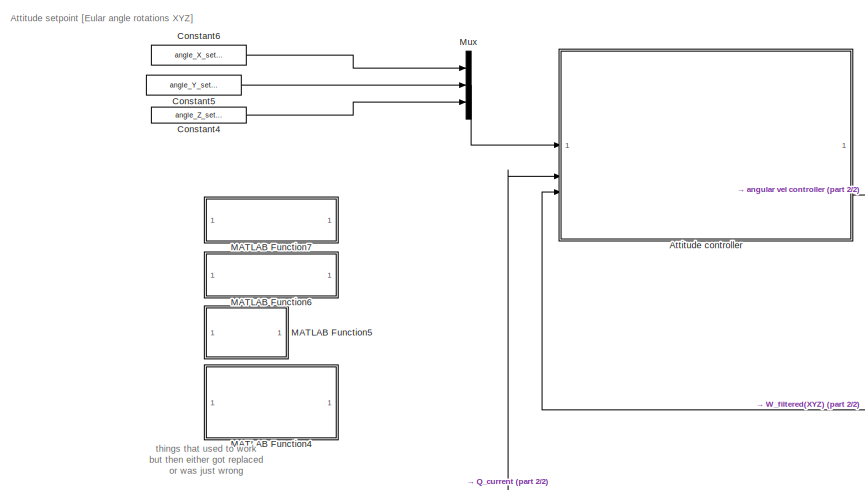
[diagram: root canvas - part 1/2, middle left region]
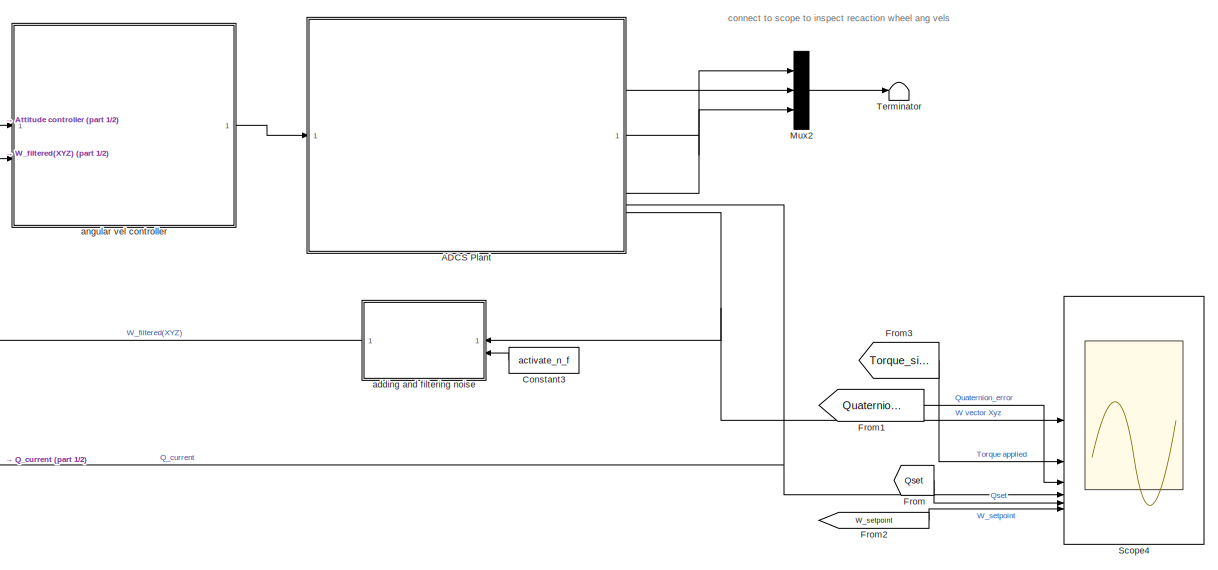
[diagram: root canvas - part 2/2, right side, full height]
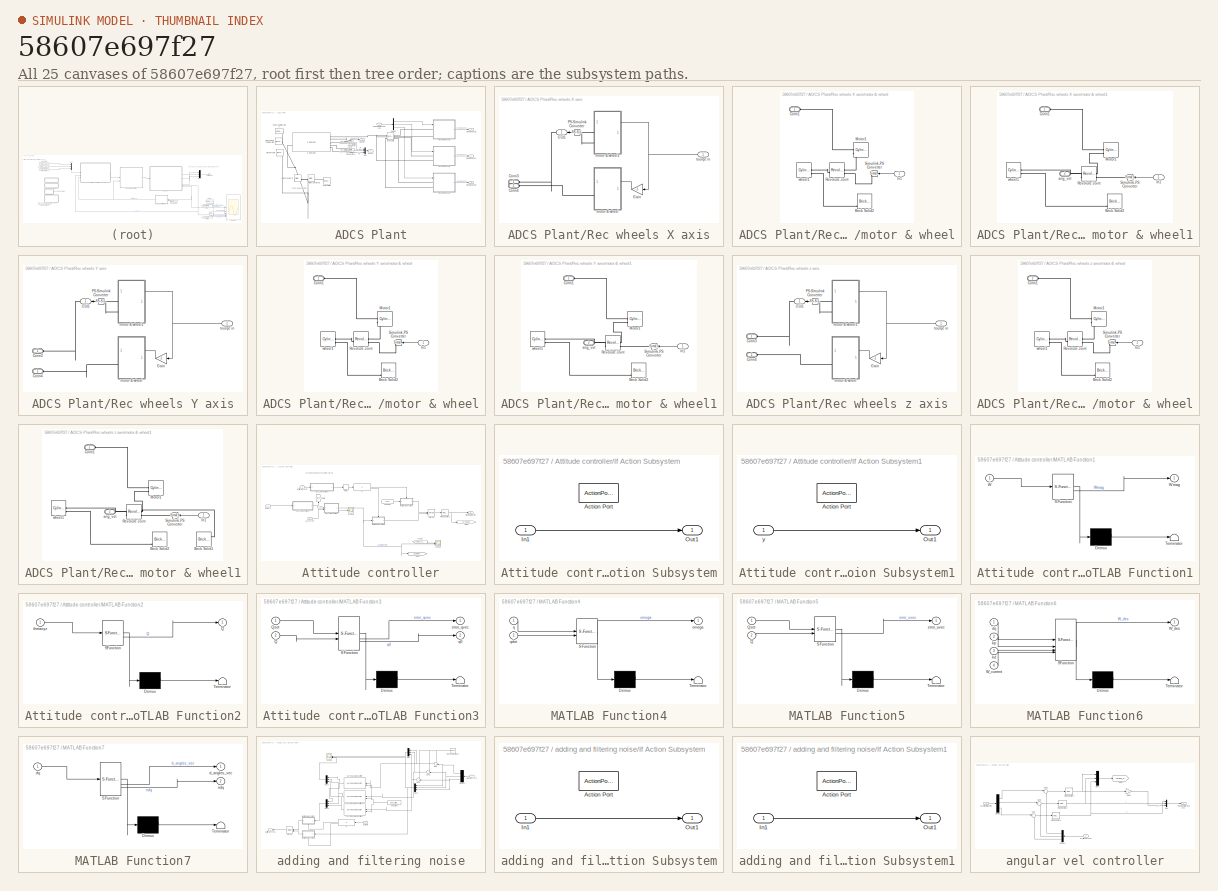
[diagram: thumbnail index - all 25 canvases of the model, root first then tree order]
MODEL slx_58607e697f27
KIND model
CONFIG AbsTol = auto
CONFIG EnableMultiTasking = off
CONFIG FixedStep = 0.01
CONFIG MaxStep = auto
CONFIG MinStep = auto
CONFIG RelTol = 1e-3
CONFIG SampleTimeConstraint = Unconstrained
CONFIG SolverName = FixedStepAuto
CONFIG StartTime = 0.0
CONFIG StopTime = 100
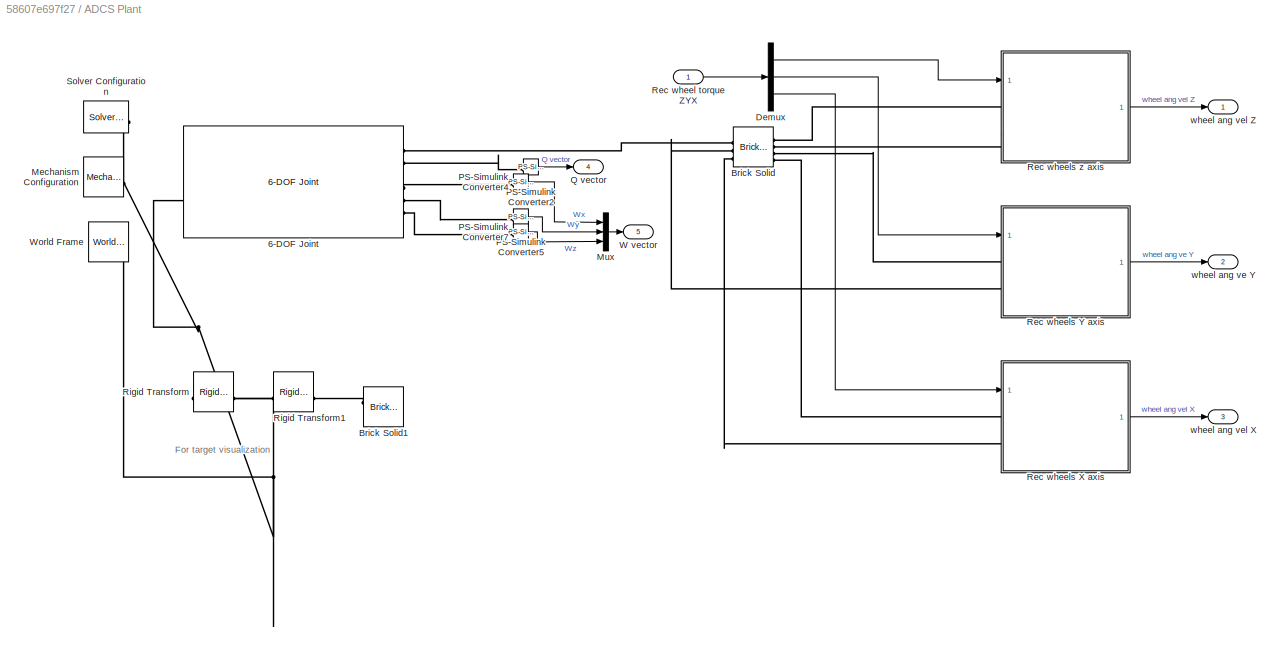
BLOCK [SubSystem] ADCS Plant
BLOCK [Reference] ADCS Plant/6-DOF Joint  REF=sm_lib/Joints/6-DOF Joint
  SourceBlock = sm_lib/Joints/6-DOF Joint
  SourceType = 6-DOF Joint
BLOCK [Reference] ADCS Plant/Brick Solid  REF=sm_lib/Body Elements/Brick Solid
  NameLocation = top
  SourceBlock = sm_lib/Body Elements/Brick Solid
  SourceType = Brick Solid
BLOCK [Reference] ADCS Plant/Brick Solid1  REF=sm_lib/Body Elements/Brick Solid
  NameLocation = top
  SourceBlock = sm_lib/Body Elements/Brick Solid
  SourceType = Brick Solid
BLOCK [Demux] ADCS Plant/Demux
  Outputs = 3
BLOCK [Reference] ADCS Plant/Mechanism Configuration  REF=sm_lib/Utilities/Mechanism
Configuration
  SourceBlock = sm_lib/Utilities/Mechanism\nConfiguration
  SourceType = Mechanism\nConfiguration
BLOCK [Mux] ADCS Plant/Mux
  DisplayOption = bar
  Inputs = 3
BLOCK [Reference] ADCS Plant/PS-Simulink Converter2  REF=nesl_utility/PS-Simulink
Converter
  SourceBlock = nesl_utility/PS-Simulink\nConverter
  SourceType = PS-Simulink\nConverter
BLOCK [Reference] ADCS Plant/PS-Simulink Converter4  REF=nesl_utility/PS-Simulink
Converter
  SourceBlock = nesl_utility/PS-Simulink\nConverter
  SourceType = PS-Simulink\nConverter
BLOCK [Reference] ADCS Plant/PS-Simulink Converter5  REF=nesl_utility/PS-Simulink
Converter
  SourceBlock = nesl_utility/PS-Simulink\nConverter
  SourceType = PS-Simulink\nConverter
BLOCK [Reference] ADCS Plant/PS-Simulink Converter7  REF=nesl_utility/PS-Simulink
Converter
  SourceBlock = nesl_utility/PS-Simulink\nConverter
  SourceType = PS-Simulink\nConverter
BLOCK [Outport] ADCS Plant/Q vector
  Port = 4
BLOCK [Inport] ADCS Plant/Rec wheel torque ZYX
BLOCK [SubSystem] ADCS Plant/Rec wheels X axis
BLOCK [PMIOPort] ADCS Plant/Rec wheels X axis/Conn3
  Side = Left
BLOCK [PMIOPort] ADCS Plant/Rec wheels X axis/Conn4
  Port = 2
  Side = Left
BLOCK [Gain] ADCS Plant/Rec wheels X axis/Gain
  Gain = -1
  NameLocation = top
BLOCK [Outport] ADCS Plant/Rec wheels X axis/Out1
  IconDisplay = Signal name
  NameLocation = top
BLOCK [Reference] ADCS Plant/Rec wheels X axis/PS-Simulink Converter  REF=nesl_utility/PS-Simulink
Converter
  NameLocation = top
  SourceBlock = nesl_utility/PS-Simulink\nConverter
  SourceType = PS-Simulink\nConverter
BLOCK [SubSystem] ADCS Plant/Rec wheels X axis/motor & wheel
  PortSchema = {"entries":[{"content":{"sides":[{"content":{"connectorIds":["LConn1"]},"type":"ConnectorPlacement.EquallySpacedRectSide","uuid":"e634adfb-2520-4564-986c-efae72637d56"},{"content":{"connectorIds":["In1"],"side":"RIGHT"},"type":"ConnectorPlacement.EquallySpacedRectSide","uuid":"d5a56bd9-b246-40bb-b48e-945087d1a6ac"},{"content":{"side":"TOP"},"type":"ConnectorPlacement.EquallySpacedRectSide","uuid":...<+224ch>  <repeated x3 — deduplicated; at blocks: motor & wheel>
BLOCK [Reference] ADCS Plant/Rec wheels X axis/motor & wheel/Brick Solid2  REF=sm_lib/Body Elements/Brick Solid
  SourceBlock = sm_lib/Body Elements/Brick Solid
  SourceType = Brick Solid
BLOCK [PMIOPort] ADCS Plant/Rec wheels X axis/motor & wheel/Conn1
  Side = Left
BLOCK [Inport] ADCS Plant/Rec wheels X axis/motor & wheel/In1
  NameLocation = top
BLOCK [Reference] ADCS Plant/Rec wheels X axis/motor & wheel/Motor1  REF=sm_lib/Body Elements/Cylindrical Solid
  SourceBlock = sm_lib/Body Elements/Cylindrical Solid
  SourceType = Cylindrical Solid
BLOCK [Reference] ADCS Plant/Rec wheels X axis/motor & wheel/Revolute Joint  REF=sm_lib/Joints/Revolute Joint
  NameLocation = top
  SourceBlock = sm_lib/Joints/Revolute Joint
  SourceType = Revolute Joint
BLOCK [Reference] ADCS Plant/Rec wheels X axis/motor & wheel/Simulink-PS Converter  REF=nesl_utility/Simulink-PS
Converter
  NameLocation = top
  SourceBlock = nesl_utility/Simulink-PS\nConverter
  SourceType = Simulink-PS\nConverter
BLOCK [Reference] ADCS Plant/Rec wheels X axis/motor & wheel/wheel1  REF=sm_lib/Body Elements/Cylindrical Solid
  NameLocation = top
  SourceBlock = sm_lib/Body Elements/Cylindrical Solid
  SourceType = Cylindrical Solid
BLOCK [SubSystem] ADCS Plant/Rec wheels X axis/motor & wheel1
  PortSchema = {"entries":[{"content":{"sides":[{"content":{"connectorIds":["LConn1","LConn2"]},"type":"ConnectorPlacement.EquallySpacedRectSide","uuid":"2ae3b8fa-607a-4ba3-b60e-34f468e508aa"},{"content":{"connectorIds":["In1"],"side":"RIGHT"},"type":"ConnectorPlacement.EquallySpacedRectSide","uuid":"3c74f0fd-49b5-45a1-b15a-904bafda6326"},{"content":{"side":"TOP"},"type":"ConnectorPlacement.EquallySpacedRectSide...<+233ch>  <repeated x3 — deduplicated; at blocks: motor & wheel1>
BLOCK [Reference] ADCS Plant/Rec wheels X axis/motor & wheel1/Brick Solid2  REF=sm_lib/Body Elements/Brick Solid
  SourceBlock = sm_lib/Body Elements/Brick Solid
  SourceType = Brick Solid
BLOCK [PMIOPort] ADCS Plant/Rec wheels X axis/motor & wheel1/Conn1
  Side = Left
BLOCK [Inport] ADCS Plant/Rec wheels X axis/motor & wheel1/In1
  NameLocation = top
BLOCK [Reference] ADCS Plant/Rec wheels X axis/motor & wheel1/Motor1  REF=sm_lib/Body Elements/Cylindrical Solid
  SourceBlock = sm_lib/Body Elements/Cylindrical Solid
  SourceType = Cylindrical Solid
BLOCK [Reference] ADCS Plant/Rec wheels X axis/motor & wheel1/Revolute Joint  REF=sm_lib/Joints/Revolute Joint
  NameLocation = top
  SourceBlock = sm_lib/Joints/Revolute Joint
  SourceType = Revolute Joint
BLOCK [Reference] ADCS Plant/Rec wheels X axis/motor & wheel1/Simulink-PS Converter  REF=nesl_utility/Simulink-PS
Converter
  NameLocation = top
  SourceBlock = nesl_utility/Simulink-PS\nConverter
  SourceType = Simulink-PS\nConverter
BLOCK [PMIOPort] ADCS Plant/Rec wheels X axis/motor & wheel1/ang_vel
  Port = 2
  Side = Left
BLOCK [Reference] ADCS Plant/Rec wheels X axis/motor & wheel1/wheel1  REF=sm_lib/Body Elements/Cylindrical Solid
  NameLocation = top
  SourceBlock = sm_lib/Body Elements/Cylindrical Solid
  SourceType = Cylindrical Solid
BLOCK [Inport] ADCS Plant/Rec wheels X axis/tourqe in
BLOCK [SubSystem] ADCS Plant/Rec wheels Y axis
BLOCK [PMIOPort] ADCS Plant/Rec wheels Y axis/Conn3
  Side = Left
BLOCK [PMIOPort] ADCS Plant/Rec wheels Y axis/Conn4
  Port = 2
  Side = Left
BLOCK [Gain] ADCS Plant/Rec wheels Y axis/Gain
  Gain = -1
  NameLocation = top
BLOCK [Outport] ADCS Plant/Rec wheels Y axis/Out1
  IconDisplay = Signal name
  NameLocation = top
BLOCK [Reference] ADCS Plant/Rec wheels Y axis/PS-Simulink Converter  REF=nesl_utility/PS-Simulink
Converter
  NameLocation = top
  SourceBlock = nesl_utility/PS-Simulink\nConverter
  SourceType = PS-Simulink\nConverter
BLOCK [SubSystem] ADCS Plant/Rec wheels Y axis/motor & wheel
BLOCK [Reference] ADCS Plant/Rec wheels Y axis/motor & wheel/Brick Solid2  REF=sm_lib/Body Elements/Brick Solid
  SourceBlock = sm_lib/Body Elements/Brick Solid
  SourceType = Brick Solid
BLOCK [PMIOPort] ADCS Plant/Rec wheels Y axis/motor & wheel/Conn1
  Side = Left
BLOCK [Inport] ADCS Plant/Rec wheels Y axis/motor & wheel/In1
  NameLocation = top
BLOCK [Reference] ADCS Plant/Rec wheels Y axis/motor & wheel/Motor1  REF=sm_lib/Body Elements/Cylindrical Solid
  SourceBlock = sm_lib/Body Elements/Cylindrical Solid
  SourceType = Cylindrical Solid
BLOCK [Reference] ADCS Plant/Rec wheels Y axis/motor & wheel/Revolute Joint  REF=sm_lib/Joints/Revolute Joint
  NameLocation = top
  SourceBlock = sm_lib/Joints/Revolute Joint
  SourceType = Revolute Joint
BLOCK [Reference] ADCS Plant/Rec wheels Y axis/motor & wheel/Simulink-PS Converter  REF=nesl_utility/Simulink-PS
Converter
  NameLocation = top
  SourceBlock = nesl_utility/Simulink-PS\nConverter
  SourceType = Simulink-PS\nConverter
BLOCK [Reference] ADCS Plant/Rec wheels Y axis/motor & wheel/wheel1  REF=sm_lib/Body Elements/Cylindrical Solid
  NameLocation = top
  SourceBlock = sm_lib/Body Elements/Cylindrical Solid
  SourceType = Cylindrical Solid
BLOCK [SubSystem] ADCS Plant/Rec wheels Y axis/motor & wheel1
BLOCK [Reference] ADCS Plant/Rec wheels Y axis/motor & wheel1/Brick Solid2  REF=sm_lib/Body Elements/Brick Solid
  SourceBlock = sm_lib/Body Elements/Brick Solid
  SourceType = Brick Solid
BLOCK [PMIOPort] ADCS Plant/Rec wheels Y axis/motor & wheel1/Conn1
  Side = Left
BLOCK [Inport] ADCS Plant/Rec wheels Y axis/motor & wheel1/In1
  NameLocation = top
BLOCK [Reference] ADCS Plant/Rec wheels Y axis/motor & wheel1/Motor1  REF=sm_lib/Body Elements/Cylindrical Solid
  SourceBlock = sm_lib/Body Elements/Cylindrical Solid
  SourceType = Cylindrical Solid
BLOCK [Reference] ADCS Plant/Rec wheels Y axis/motor & wheel1/Revolute Joint  REF=sm_lib/Joints/Revolute Joint
  NameLocation = top
  SourceBlock = sm_lib/Joints/Revolute Joint
  SourceType = Revolute Joint
BLOCK [Reference] ADCS Plant/Rec wheels Y axis/motor & wheel1/Simulink-PS Converter  REF=nesl_utility/Simulink-PS
Converter
  NameLocation = top
  SourceBlock = nesl_utility/Simulink-PS\nConverter
  SourceType = Simulink-PS\nConverter
BLOCK [PMIOPort] ADCS Plant/Rec wheels Y axis/motor & wheel1/ang_vel
  Port = 2
  Side = Left
BLOCK [Reference] ADCS Plant/Rec wheels Y axis/motor & wheel1/wheel1  REF=sm_lib/Body Elements/Cylindrical Solid
  NameLocation = top
  SourceBlock = sm_lib/Body Elements/Cylindrical Solid
  SourceType = Cylindrical Solid
BLOCK [Inport] ADCS Plant/Rec wheels Y axis/tourqe in
BLOCK [SubSystem] ADCS Plant/Rec wheels z axis
BLOCK [PMIOPort] ADCS Plant/Rec wheels z axis/Conn3
  Side = Left
BLOCK [PMIOPort] ADCS Plant/Rec wheels z axis/Conn4
  Port = 2
  Side = Left
BLOCK [Gain] ADCS Plant/Rec wheels z axis/Gain
  Gain = -1
  NameLocation = top
BLOCK [Outport] ADCS Plant/Rec wheels z axis/Out1
  IconDisplay = Signal name
  NameLocation = top
BLOCK [Reference] ADCS Plant/Rec wheels z axis/PS-Simulink Converter  REF=nesl_utility/PS-Simulink
Converter
  NameLocation = top
  SourceBlock = nesl_utility/PS-Simulink\nConverter
  SourceType = PS-Simulink\nConverter
BLOCK [SubSystem] ADCS Plant/Rec wheels z axis/motor & wheel
BLOCK [Reference] ADCS Plant/Rec wheels z axis/motor & wheel/Brick Solid2  REF=sm_lib/Body Elements/Brick Solid
  SourceBlock = sm_lib/Body Elements/Brick Solid
  SourceType = Brick Solid
BLOCK [PMIOPort] ADCS Plant/Rec wheels z axis/motor & wheel/Conn1
  Side = Left
BLOCK [Inport] ADCS Plant/Rec wheels z axis/motor & wheel/In1
  NameLocation = top
BLOCK [Reference] ADCS Plant/Rec wheels z axis/motor & wheel/Motor1  REF=sm_lib/Body Elements/Cylindrical Solid
  SourceBlock = sm_lib/Body Elements/Cylindrical Solid
  SourceType = Cylindrical Solid
BLOCK [Reference] ADCS Plant/Rec wheels z axis/motor & wheel/Revolute Joint  REF=sm_lib/Joints/Revolute Joint
  NameLocation = top
  SourceBlock = sm_lib/Joints/Revolute Joint
  SourceType = Revolute Joint
BLOCK [Reference] ADCS Plant/Rec wheels z axis/motor & wheel/Simulink-PS Converter  REF=nesl_utility/Simulink-PS
Converter
  NameLocation = top
  SourceBlock = nesl_utility/Simulink-PS\nConverter
  SourceType = Simulink-PS\nConverter
BLOCK [Reference] ADCS Plant/Rec wheels z axis/motor & wheel/wheel1  REF=sm_lib/Body Elements/Cylindrical Solid
  NameLocation = top
  SourceBlock = sm_lib/Body Elements/Cylindrical Solid
  SourceType = Cylindrical Solid
BLOCK [SubSystem] ADCS Plant/Rec wheels z axis/motor & wheel1
BLOCK [Reference] ADCS Plant/Rec wheels z axis/motor & wheel1/Brick Solid1  REF=sm_lib/Body Elements/Brick Solid
  NameLocation = top
  SourceBlock = sm_lib/Body Elements/Brick Solid
  SourceType = Brick Solid
BLOCK [Reference] ADCS Plant/Rec wheels z axis/motor & wheel1/Brick Solid2  REF=sm_lib/Body Elements/Brick Solid
  SourceBlock = sm_lib/Body Elements/Brick Solid
  SourceType = Brick Solid
BLOCK [PMIOPort] ADCS Plant/Rec wheels z axis/motor & wheel1/Conn1
  Side = Left
BLOCK [Inport] ADCS Plant/Rec wheels z axis/motor & wheel1/In1
  NameLocation = top
BLOCK [Reference] ADCS Plant/Rec wheels z axis/motor & wheel1/Motor1  REF=sm_lib/Body Elements/Cylindrical Solid
  SourceBlock = sm_lib/Body Elements/Cylindrical Solid
  SourceType = Cylindrical Solid
BLOCK [Reference] ADCS Plant/Rec wheels z axis/motor & wheel1/Revolute Joint  REF=sm_lib/Joints/Revolute Joint
  NameLocation = top
  SourceBlock = sm_lib/Joints/Revolute Joint
  SourceType = Revolute Joint
BLOCK [Reference] ADCS Plant/Rec wheels z axis/motor & wheel1/Simulink-PS Converter  REF=nesl_utility/Simulink-PS
Converter
  NameLocation = top
  SourceBlock = nesl_utility/Simulink-PS\nConverter
  SourceType = Simulink-PS\nConverter
BLOCK [PMIOPort] ADCS Plant/Rec wheels z axis/motor & wheel1/ang_vel
  Port = 2
  Side = Left
BLOCK [Reference] ADCS Plant/Rec wheels z axis/motor & wheel1/wheel1  REF=sm_lib/Body Elements/Cylindrical Solid
  NameLocation = top
  SourceBlock = sm_lib/Body Elements/Cylindrical Solid
  SourceType = Cylindrical Solid
BLOCK [Inport] ADCS Plant/Rec wheels z axis/tourqe in
BLOCK [Reference] ADCS Plant/Rigid Transform  REF=sm_lib/Frames and
Transforms/Rigid
Transform
  SourceBlock = sm_lib/Frames and\nTransforms/Rigid\nTransform
  SourceType = Rigid\nTransform
BLOCK [Reference] ADCS Plant/Rigid Transform1  REF=sm_lib/Frames and
Transforms/Rigid
Transform
  SourceBlock = sm_lib/Frames and\nTransforms/Rigid\nTransform
  SourceType = Rigid\nTransform
BLOCK [Reference] ADCS Plant/Solver Configuration  REF=nesl_utility/Solver
Configuration
  SourceBlock = nesl_utility/Solver\nConfiguration
  SourceType = Solver\nConfiguration
BLOCK [Outport] ADCS Plant/W vector
  Port = 5
BLOCK [Reference] ADCS Plant/World Frame  REF=sm_lib/Frames and
Transforms/World Frame
  SourceBlock = sm_lib/Frames and\nTransforms/World Frame
  SourceType = World Frame
BLOCK [Outport] ADCS Plant/wheel ang ve Y
  Port = 2
BLOCK [Outport] ADCS Plant/wheel ang vel X
  Port = 3
BLOCK [Outport] ADCS Plant/wheel ang vel Z
BLOCK [SubSystem] Attitude controller
BLOCK [Constant] Attitude controller/Constant
  Value = [0 0 0]
BLOCK [From] Attitude controller/From2
  GotoTag = Torque_signal
  TagVisibility = global
BLOCK [Goto] Attitude controller/Goto
  GotoTag = Qset
  NameLocation = right
  TagVisibility = global
BLOCK [Goto] Attitude controller/Goto1
  GotoTag = Quaternion_error
  TagVisibility = global
BLOCK [Goto] Attitude controller/Goto2
  GotoTag = W_setpoint
  TagVisibility = global
BLOCK [If] Attitude controller/If
  IfExpression = u1 > 5
BLOCK [SubSystem] Attitude controller/If Action Subsystem
  TreatAsAtomicUnit = on
BLOCK [ActionPort] Attitude controller/If Action Subsystem/Action Port
  ActionPortLabel = if(u1 > 5)
BLOCK [Inport] Attitude controller/If Action Subsystem/In1
BLOCK [Outport] Attitude controller/If Action Subsystem/Out1
BLOCK [SubSystem] Attitude controller/If Action Subsystem1
  TreatAsAtomicUnit = on
BLOCK [ActionPort] Attitude controller/If Action Subsystem1/Action Port
  ActionPortLabel = else
BLOCK [Outport] Attitude controller/If Action Subsystem1/Out1
BLOCK [Inport] Attitude controller/If Action Subsystem1/y
BLOCK [SubSystem] Attitude controller/MATLAB Function1
  ErrorFcn = Stateflow.Translate.translate
  PermitHierarchicalResolution = ExplicitOnly
  SFBlockType = MATLAB Function
  TreatAsAtomicUnit = on
BLOCK [Demux] Attitude controller/MATLAB Function1/ Demux 
  Outputs = 1
BLOCK [S-Function] Attitude controller/MATLAB Function1/ SFunction 
  EnableBusSupport = on
  FunctionName = sf_sfun
  PortCounts = [1 2]
  SFcnIsStateOwnerBlock = off
  SFunctionDeploymentMode = off
  Tag = Stateflow S-Function 1
BLOCK [Terminator] Attitude controller/MATLAB Function1/ Terminator 
BLOCK [Inport] Attitude controller/MATLAB Function1/W
BLOCK [Outport] Attitude controller/MATLAB Function1/Wmag
BLOCK [SubSystem] Attitude controller/MATLAB Function2
  ErrorFcn = Stateflow.Translate.translate
  PermitHierarchicalResolution = ExplicitOnly
  SFBlockType = MATLAB Function
  TreatAsAtomicUnit = on
BLOCK [Demux] Attitude controller/MATLAB Function2/ Demux 
  Outputs = 1
BLOCK [S-Function] Attitude controller/MATLAB Function2/ SFunction 
  EnableBusSupport = on
  FunctionName = sf_sfun
  PortCounts = [1 2]
  SFcnIsStateOwnerBlock = off
  SFunctionDeploymentMode = off
  Tag = Stateflow S-Function 3
BLOCK [Terminator] Attitude controller/MATLAB Function2/ Terminator 
BLOCK [Outport] Attitude controller/MATLAB Function2/Q
BLOCK [Inport] Attitude controller/MATLAB Function2/thetaxyz
BLOCK [SubSystem] Attitude controller/MATLAB Function3
  ErrorFcn = Stateflow.Translate.translate
  PermitHierarchicalResolution = ExplicitOnly
  SFBlockType = MATLAB Function
  TreatAsAtomicUnit = on
BLOCK [Demux] Attitude controller/MATLAB Function3/ Demux 
  Outputs = 1
BLOCK [S-Function] Attitude controller/MATLAB Function3/ SFunction 
  EnableBusSupport = on
  FunctionName = sf_sfun
  PortCounts = [2 3]
  SFcnIsStateOwnerBlock = off
  SFunctionDeploymentMode = off
  Tag = Stateflow S-Function 4
BLOCK [Terminator] Attitude controller/MATLAB Function3/ Terminator 
BLOCK [Inport] Attitude controller/MATLAB Function3/Q
  Port = 2
BLOCK [Inport] Attitude controller/MATLAB Function3/Qset
BLOCK [Outport] Attitude controller/MATLAB Function3/error_qvec
BLOCK [Outport] Attitude controller/MATLAB Function3/q0
  Port = 2
BLOCK [Merge] Attitude controller/Merge
BLOCK [Reference] Attitude controller/PID Controller3  REF=slpidlib/PID Controller
  LibrarySourceBlock = simulink/Continuous/PID Controller
  SourceBlock = slpidlib/PID Controller
  SourceType = PID 1dof
BLOCK [Inport] Attitude controller/Q_current
  NameLocation = top
  Port = 2
BLOCK [Relay] Attitude controller/Relay
  OffSwitchValue = 0.001
  OnOutputValue = 10
  OnSwitchValue = 10
BLOCK [Scope] Attitude controller/Scope2
  Floating = off
  NumInputPorts = 2
  ScopeSpecificationString = Simulink.scopes.TimeScopeBlockCfg('CurrentConfiguration', extmgr.ConfigurationSet(extmgr.Configuration('Core','General UI',true),extmgr.Configuration('Core','Source UI',true),extmgr.Configuration('Sources','WiredSimulink',true,'DataLoggingVariableName','ScopeData1'),extmgr.Configuration('Visuals','Time Domain',true,'SerializedDisplays',{struct('MinYLimReal','-0.00063','MaxYLimReal','0.00063','YLab...<+2439ch>
BLOCK [Scope] Attitude controller/Scope3
  Floating = off
  NumInputPorts = 1
  ScopeSpecificationString = Simulink.scopes.TimeScopeBlockCfg('CurrentConfiguration', extmgr.ConfigurationSet(extmgr.Configuration('Core','General UI',true),extmgr.Configuration('Core','Source UI',true),extmgr.Configuration('Sources','WiredSimulink',true,'DataLoggingVariableName','ScopeData2'),extmgr.Configuration('Visuals','Time Domain',true,'SerializedDisplays',{struct('MinYLimReal','-1.17496','MaxYLimReal','1.17562','YLab...<+2278ch>
BLOCK [Outport] Attitude controller/W setpoint vector
BLOCK [Inport] Attitude controller/W_filtered(XYZ)
  Port = 3
BLOCK [Inport] Attitude controller/thetaxyz
BLOCK [Constant] Constant3
  NameLocation = top
  Value = activate_n_f
BLOCK [Constant] Constant4
  Value = angle_Z_setpoint
BLOCK [Constant] Constant5
  Value = angle_Y_setpoint
BLOCK [Constant] Constant6
  Value = angle_X_setpoint
BLOCK [From] From
  GotoTag = Qset
  TagVisibility = global
BLOCK [From] From1
  GotoTag = Quaternion_error
  TagVisibility = global
BLOCK [From] From2
  GotoTag = W_setpoint
  TagVisibility = global
BLOCK [From] From3
  GotoTag = Torque_signal
  TagVisibility = global
BLOCK [SubSystem] MATLAB Function4
  Commented = on
  ErrorFcn = Stateflow.Translate.translate
  NameLocation = top
  PermitHierarchicalResolution = ExplicitOnly
  SFBlockType = MATLAB Function
  TreatAsAtomicUnit = on
BLOCK [Demux] MATLAB Function4/ Demux 
  Outputs = 1
BLOCK [S-Function] MATLAB Function4/ SFunction 
  EnableBusSupport = on
  FunctionName = sf_sfun
  PortCounts = [2 2]
  SFcnIsStateOwnerBlock = off
  SFunctionDeploymentMode = off
  Tag = Stateflow S-Function 5
BLOCK [Terminator] MATLAB Function4/ Terminator 
BLOCK [Outport] MATLAB Function4/omega
BLOCK [Inport] MATLAB Function4/q
BLOCK [Inport] MATLAB Function4/qdot
  Port = 2
BLOCK [SubSystem] MATLAB Function5
  Commented = on
  ErrorFcn = Stateflow.Translate.translate
  NameLocation = top
  PermitHierarchicalResolution = ExplicitOnly
  SFBlockType = MATLAB Function
  TreatAsAtomicUnit = on
BLOCK [Demux] MATLAB Function5/ Demux 
  Outputs = 1
BLOCK [S-Function] MATLAB Function5/ SFunction 
  EnableBusSupport = on
  FunctionName = sf_sfun
  PortCounts = [2 2]
  SFcnIsStateOwnerBlock = off
  SFunctionDeploymentMode = off
  Tag = Stateflow S-Function 6
BLOCK [Terminator] MATLAB Function5/ Terminator 
BLOCK [Inport] MATLAB Function5/Q
  Port = 2
BLOCK [Inport] MATLAB Function5/Qset
BLOCK [Outport] MATLAB Function5/error_uvec
BLOCK [SubSystem] MATLAB Function6
  Commented = on
  ErrorFcn = Stateflow.Translate.translate
  NameLocation = top
  PermitHierarchicalResolution = ExplicitOnly
  SFBlockType = MATLAB Function
  TreatAsAtomicUnit = on
BLOCK [Demux] MATLAB Function6/ Demux 
  Outputs = 1
BLOCK [S-Function] MATLAB Function6/ SFunction 
  EnableBusSupport = on
  FunctionName = sf_sfun
  PortCounts = [4 2]
  SFcnIsStateOwnerBlock = off
  SFunctionDeploymentMode = off
  Tag = Stateflow S-Function 7
BLOCK [Terminator] MATLAB Function6/ Terminator 
BLOCK [Inport] MATLAB Function6/W_current
  Port = 4
BLOCK [Outport] MATLAB Function6/W_des
BLOCK [Inport] MATLAB Function6/dq
BLOCK [Inport] MATLAB Function6/kd
  Port = 3
BLOCK [Inport] MATLAB Function6/kp
  Port = 2
BLOCK [SubSystem] MATLAB Function7
  Commented = on
  ErrorFcn = Stateflow.Translate.translate
  NameLocation = top
  PermitHierarchicalResolution = ExplicitOnly
  SFBlockType = MATLAB Function
  TreatAsAtomicUnit = on
BLOCK [Demux] MATLAB Function7/ Demux 
  Outputs = 1
BLOCK [S-Function] MATLAB Function7/ SFunction 
  EnableBusSupport = on
  FunctionName = sf_sfun
  PortCounts = [1 3]
  SFcnIsStateOwnerBlock = off
  SFunctionDeploymentMode = off
  Tag = Stateflow S-Function 8
BLOCK [Terminator] MATLAB Function7/ Terminator 
BLOCK [Outport] MATLAB Function7/d_angles_vec
BLOCK [Inport] MATLAB Function7/dq
BLOCK [Outport] MATLAB Function7/ndq
  Port = 2
BLOCK [Mux] Mux
  DisplayOption = bar
  Inputs = 3
BLOCK [Mux] Mux2
  DisplayOption = bar
  Inputs = 3
BLOCK [Scope] Scope4
  Floating = off
  NumInputPorts = 6
  ScopeSpecificationString = Simulink.scopes.TimeScopeBlockCfg('CurrentConfiguration', extmgr.ConfigurationSet(extmgr.Configuration('Core','General UI',true),extmgr.Configuration('Core','Source UI',true),extmgr.Configuration('Sources','WiredSimulink',true,'DataLoggingVariableName','ScopeData4'),extmgr.Configuration('Visuals','Time Domain',true,'SerializedDisplays',{struct('MinYLimReal','-3.40019','MaxYLimReal','23.64886','YLa...<+5986ch>
BLOCK [Terminator] Terminator
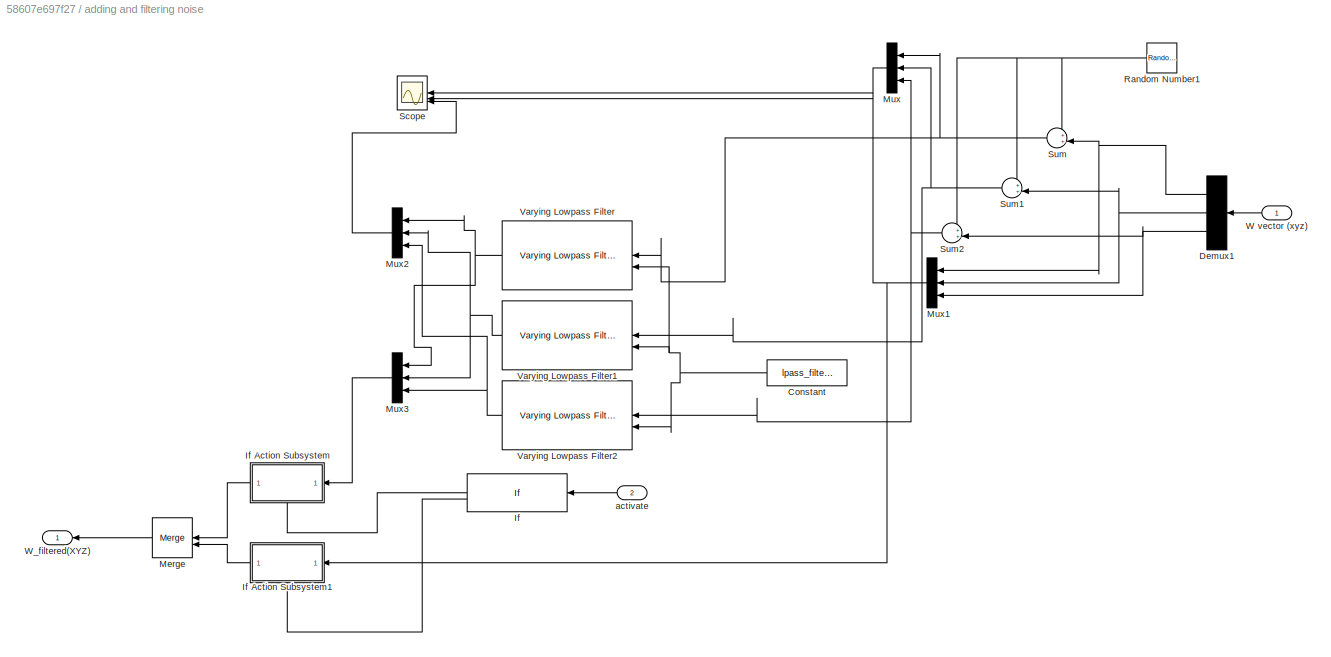
BLOCK [SubSystem] adding and filtering noise
BLOCK [Constant] adding and filtering noise/Constant
  NameLocation = top
  Value = lpass_filter_freq
BLOCK [Demux] adding and filtering noise/Demux1
  NameLocation = top
  Outputs = 3
BLOCK [If] adding and filtering noise/If
  NameLocation = top
BLOCK [SubSystem] adding and filtering noise/If Action Subsystem
  NameLocation = top
  TreatAsAtomicUnit = on
BLOCK [ActionPort] adding and filtering noise/If Action Subsystem/Action Port
  ActionPortLabel = if(u1 > 0)
BLOCK [Inport] adding and filtering noise/If Action Subsystem/In1
BLOCK [Outport] adding and filtering noise/If Action Subsystem/Out1
BLOCK [SubSystem] adding and filtering noise/If Action Subsystem1
  NameLocation = top
  TreatAsAtomicUnit = on
BLOCK [ActionPort] adding and filtering noise/If Action Subsystem1/Action Port
  ActionPortLabel = else
BLOCK [Inport] adding and filtering noise/If Action Subsystem1/In1
BLOCK [Outport] adding and filtering noise/If Action Subsystem1/Out1
BLOCK [Merge] adding and filtering noise/Merge
  NameLocation = top
BLOCK [Mux] adding and filtering noise/Mux
  DisplayOption = bar
  Inputs = 3
  NameLocation = top
BLOCK [Mux] adding and filtering noise/Mux1
  DisplayOption = bar
  Inputs = 3
  NameLocation = top
BLOCK [Mux] adding and filtering noise/Mux2
  DisplayOption = bar
  Inputs = 3
  NameLocation = top
BLOCK [Mux] adding and filtering noise/Mux3
  DisplayOption = bar
  Inputs = 3
  NameLocation = top
BLOCK [RandomNumber] adding and filtering noise/Random Number1
  NameLocation = top
  SampleTime = 0.05
  Variance = 2
BLOCK [Scope] adding and filtering noise/Scope
  Floating = off
  NameLocation = top
  NumInputPorts = 3
  ScopeSpecificationString = Simulink.scopes.TimeScopeBlockCfg('CurrentConfiguration', extmgr.ConfigurationSet(extmgr.Configuration('Core','General UI',true),extmgr.Configuration('Core','Source UI',true),extmgr.Configuration('Sources','WiredSimulink',true,'DataLoggingVariableName','ScopeData5'),extmgr.Configuration('Visuals','Time Domain',true,'SerializedDisplays',{struct('MinYLimReal','-7.79761','MaxYLimReal','26.71052','YLa...<+3089ch>
BLOCK [Sum] adding and filtering noise/Sum
  Inputs = ++|
  NameLocation = top
BLOCK [Sum] adding and filtering noise/Sum1
  Inputs = ++|
  NameLocation = top
BLOCK [Sum] adding and filtering noise/Sum2
  Inputs = ++|
  NameLocation = top
BLOCK [Reference] adding and filtering noise/Varying Lowpass Filter  REF=cstblocks/Linear Parameter Varying/Varying Lowpass Filter
  NameLocation = top
  SourceBlock = cstblocks/Linear Parameter Varying/Varying Lowpass Filter
  SourceType = Varying Lowpass Filter
BLOCK [Reference] adding and filtering noise/Varying Lowpass Filter1  REF=cstblocks/Linear Parameter Varying/Varying Lowpass Filter
  NameLocation = top
  SourceBlock = cstblocks/Linear Parameter Varying/Varying Lowpass Filter
  SourceType = Varying Lowpass Filter
BLOCK [Reference] adding and filtering noise/Varying Lowpass Filter2  REF=cstblocks/Linear Parameter Varying/Varying Lowpass Filter
  NameLocation = top
  SourceBlock = cstblocks/Linear Parameter Varying/Varying Lowpass Filter
  SourceType = Varying Lowpass Filter
BLOCK [Inport] adding and filtering noise/W vector (xyz)
  NameLocation = top
BLOCK [Outport] adding and filtering noise/W_filtered(XYZ)
  NameLocation = top
BLOCK [Inport] adding and filtering noise/activate
  NameLocation = top
  Port = 2
BLOCK [SubSystem] angular vel controller
BLOCK [Demux] angular vel controller/Demux
  Outputs = 3
BLOCK [Demux] angular vel controller/Demux1
  NameLocation = top
  Outputs = 3
BLOCK [Gain] angular vel controller/Gain2
  Gain = -1
BLOCK [Goto] angular vel controller/Goto2
  GotoTag = Torque_signal
  TagVisibility = global
BLOCK [Mux] angular vel controller/Mux
  DisplayOption = bar
  Inputs = 3
BLOCK [Mux] angular vel controller/Mux1
  DisplayOption = bar
  Inputs = 3
BLOCK [Reference] angular vel controller/PID Controller1  REF=slpidlib/PID Controller
  LibrarySourceBlock = simulink/Continuous/PID Controller
  SourceBlock = slpidlib/PID Controller
  SourceType = PID 1dof
BLOCK [Reference] angular vel controller/PID Controller2  REF=slpidlib/PID Controller
  LibrarySourceBlock = simulink/Continuous/PID Controller
  SourceBlock = slpidlib/PID Controller
  SourceType = PID 1dof
BLOCK [Reference] angular vel controller/PID Controller4  REF=slpidlib/PID Controller
  LibrarySourceBlock = simulink/Continuous/PID Controller
  SourceBlock = slpidlib/PID Controller
  SourceType = PID 1dof
BLOCK [Outport] angular vel controller/Rec wheel torque ZYX
BLOCK [Sum] angular vel controller/Sum
  Inputs = |+-
BLOCK [Sum] angular vel controller/Sum1
  Inputs = |+-
BLOCK [Sum] angular vel controller/Sum2
  Inputs = |+-
BLOCK [Inport] angular vel controller/W setpoint vector
BLOCK [Inport] angular vel controller/W_filtered(XYZ)
  Port = 2
ANNOTATION (root): things that used to work but then either got replaced or was just wrong
ANNOTATION (root): Attitude setpoint [Eular angle rotations XYZ]
ANNOTATION (root): connect to scope to inspect recaction wheel ang vels
ANNOTATION ADCS Plant: For target visualization
ANNOTATION Attitude controller: check if speed is low enough with hysterisis
LINE ADCS Plant/Demux:1 -> ADCS Plant/Rec wheels z axis:1
LINE ADCS Plant/Demux:2 -> ADCS Plant/Rec wheels Y axis:1
LINE ADCS Plant/Demux:3 -> ADCS Plant/Rec wheels X axis:1
LINE ADCS Plant/Mux:1 -> ADCS Plant/W vector:1
LINE ADCS Plant/PS-Simulink Converter2:1 -> ADCS Plant/Q vector:1
LINE ADCS Plant/PS-Simulink Converter4:1 -> ADCS Plant/Mux:1
LINE ADCS Plant/PS-Simulink Converter5:1 -> ADCS Plant/Mux:2
LINE ADCS Plant/PS-Simulink Converter7:1 -> ADCS Plant/Mux:3
LINE ADCS Plant/Rec wheel torque ZYX:1 -> ADCS Plant/Demux:1
LINE ADCS Plant/Rec wheels X axis/Gain:1 -> ADCS Plant/Rec wheels X axis/motor & wheel:1
LINE ADCS Plant/Rec wheels X axis/PS-Simulink Converter:1 -> ADCS Plant/Rec wheels X axis/Out1:1
LINE ADCS Plant/Rec wheels X axis/motor & wheel/In1:1 -> ADCS Plant/Rec wheels X axis/motor & wheel/Simulink-PS Converter:1
LINE ADCS Plant/Rec wheels X axis/motor & wheel1/In1:1 -> ADCS Plant/Rec wheels X axis/motor & wheel1/Simulink-PS Converter:1
NET ADCS Plant/Rec wheels X axis/tourqe in:1 -> ADCS Plant/Rec wheels X axis/Gain:1, ADCS Plant/Rec wheels X axis/motor & wheel1:1
LINE ADCS Plant/Rec wheels X axis:1 -> ADCS Plant/wheel ang vel X:1
LINE ADCS Plant/Rec wheels Y axis/Gain:1 -> ADCS Plant/Rec wheels Y axis/motor & wheel:1
LINE ADCS Plant/Rec wheels Y axis/PS-Simulink Converter:1 -> ADCS Plant/Rec wheels Y axis/Out1:1
LINE ADCS Plant/Rec wheels Y axis/motor & wheel/In1:1 -> ADCS Plant/Rec wheels Y axis/motor & wheel/Simulink-PS Converter:1
LINE ADCS Plant/Rec wheels Y axis/motor & wheel1/In1:1 -> ADCS Plant/Rec wheels Y axis/motor & wheel1/Simulink-PS Converter:1
NET ADCS Plant/Rec wheels Y axis/tourqe in:1 -> ADCS Plant/Rec wheels Y axis/Gain:1, ADCS Plant/Rec wheels Y axis/motor & wheel1:1
LINE ADCS Plant/Rec wheels Y axis:1 -> ADCS Plant/wheel ang ve Y:1
LINE ADCS Plant/Rec wheels z axis/Gain:1 -> ADCS Plant/Rec wheels z axis/motor & wheel:1
LINE ADCS Plant/Rec wheels z axis/PS-Simulink Converter:1 -> ADCS Plant/Rec wheels z axis/Out1:1
LINE ADCS Plant/Rec wheels z axis/motor & wheel/In1:1 -> ADCS Plant/Rec wheels z axis/motor & wheel/Simulink-PS Converter:1
LINE ADCS Plant/Rec wheels z axis/motor & wheel1/In1:1 -> ADCS Plant/Rec wheels z axis/motor & wheel1/Simulink-PS Converter:1
NET ADCS Plant/Rec wheels z axis/tourqe in:1 -> ADCS Plant/Rec wheels z axis/Gain:1, ADCS Plant/Rec wheels z axis/motor & wheel1:1
LINE ADCS Plant/Rec wheels z axis:1 -> ADCS Plant/wheel ang vel Z:1
LINE ADCS Plant:1 -> Mux2:1
LINE ADCS Plant:2 -> Mux2:2
LINE ADCS Plant:3 -> Mux2:3
NET ADCS Plant:4 -> Attitude controller:2, Scope4:4
NET ADCS Plant:5 -> Scope4:1, adding and filtering noise:1
LINE Attitude controller/Constant:1 -> Attitude controller/If Action Subsystem:1
LINE Attitude controller/From2:1 -> Attitude controller/Scope2:1
LINE Attitude controller/If Action Subsystem/In1:1 -> Attitude controller/If Action Subsystem/Out1:1
LINE Attitude controller/If Action Subsystem1/y:1 -> Attitude controller/If Action Subsystem1/Out1:1
LINE Attitude controller/If Action Subsystem1:1 -> Attitude controller/Merge:2
LINE Attitude controller/If Action Subsystem:1 -> Attitude controller/Merge:1
LINE Attitude controller/If:1 -> Attitude controller/If Action Subsystem:ifaction
LINE Attitude controller/If:2 -> Attitude controller/If Action Subsystem1:ifaction
LINE Attitude controller/MATLAB Function1:1 -> Attitude controller/Relay:1
NET Attitude controller/MATLAB Function2:1 -> Attitude controller/Goto:1, Attitude controller/MATLAB Function3:1
NET Attitude controller/MATLAB Function3:1 -> Attitude controller/Goto1:1, Attitude controller/If Action Subsystem1:1, Attitude controller/Scope2:2
LINE Attitude controller/MATLAB Function3:2 -> Attitude controller/Scope3:1
LINE Attitude controller/Merge:1 -> Attitude controller/PID Controller3:1
NET Attitude controller/PID Controller3:1 -> Attitude controller/Goto2:1, Attitude controller/W setpoint vector:1
LINE Attitude controller/Q_current:1 -> Attitude controller/MATLAB Function3:2
LINE Attitude controller/Relay:1 -> Attitude controller/If:1
LINE Attitude controller/W_filtered(XYZ):1 -> Attitude controller/MATLAB Function1:1
LINE Attitude controller/thetaxyz:1 -> Attitude controller/MATLAB Function2:1
LINE Attitude controller:1 -> angular vel controller:1
LINE Constant3:1 -> adding and filtering noise:2
LINE Constant4:1 -> Mux:3
LINE Constant5:1 -> Mux:2
LINE Constant6:1 -> Mux:1
LINE From1:1 -> Scope4:3
LINE From2:1 -> Scope4:6
LINE From3:1 -> Scope4:2
LINE From:1 -> Scope4:5
LINE Mux2:1 -> Terminator:1
LINE Mux:1 -> Attitude controller:1
NET adding and filtering noise/Constant:1 -> adding and filtering noise/Varying Lowpass Filter1:2, adding and filtering noise/Varying Lowpass Filter2:2, adding and filtering noise/Varying Lowpass Filter:2
NET adding and filtering noise/Demux1:1 -> adding and filtering noise/Mux1:1, adding and filtering noise/Sum:2
NET adding and filtering noise/Demux1:2 -> adding and filtering noise/Mux1:2, adding and filtering noise/Sum1:2
NET adding and filtering noise/Demux1:3 -> adding and filtering noise/Mux1:3, adding and filtering noise/Sum2:2
LINE adding and filtering noise/If Action Subsystem/In1:1 -> adding and filtering noise/If Action Subsystem/Out1:1
LINE adding and filtering noise/If Action Subsystem1/In1:1 -> adding and filtering noise/If Action Subsystem1/Out1:1
LINE adding and filtering noise/If Action Subsystem1:1 -> adding and filtering noise/Merge:2
LINE adding and filtering noise/If Action Subsystem:1 -> adding and filtering noise/Merge:1
LINE adding and filtering noise/If:1 -> adding and filtering noise/If Action Subsystem:ifaction
LINE adding and filtering noise/If:2 -> adding and filtering noise/If Action Subsystem1:ifaction
LINE adding and filtering noise/Merge:1 -> adding and filtering noise/W_filtered(XYZ):1
NET adding and filtering noise/Mux1:1 -> adding and filtering noise/If Action Subsystem1:1, adding and filtering noise/Scope:2
LINE adding and filtering noise/Mux2:1 -> adding and filtering noise/Scope:3
LINE adding and filtering noise/Mux3:1 -> adding and filtering noise/If Action Subsystem:1
LINE adding and filtering noise/Mux:1 -> adding and filtering noise/Scope:1
NET adding and filtering noise/Random Number1:1 -> adding and filtering noise/Sum1:1, adding and filtering noise/Sum2:1, adding and filtering noise/Sum:1
NET adding and filtering noise/Sum1:1 -> adding and filtering noise/Mux:2, adding and filtering noise/Varying Lowpass Filter1:1
NET adding and filtering noise/Sum2:1 -> adding and filtering noise/Mux:3, adding and filtering noise/Varying Lowpass Filter2:1
NET adding and filtering noise/Sum:1 -> adding and filtering noise/Mux:1, adding and filtering noise/Varying Lowpass Filter:1
NET adding and filtering noise/Varying Lowpass Filter1:1 -> adding and filtering noise/Mux2:2, adding and filtering noise/Mux3:2
NET adding and filtering noise/Varying Lowpass Filter2:1 -> adding and filtering noise/Mux2:3, adding and filtering noise/Mux3:3
NET adding and filtering noise/Varying Lowpass Filter:1 -> adding and filtering noise/Mux2:1, adding and filtering noise/Mux3:1
LINE adding and filtering noise/W vector (xyz):1 -> adding and filtering noise/Demux1:1
LINE adding and filtering noise/activate:1 -> adding and filtering noise/If:1
NET adding and filtering noise:1 -> Attitude controller:3, angular vel controller:2
LINE angular vel controller/Demux1:1 -> angular vel controller/Sum2:2
LINE angular vel controller/Demux1:2 -> angular vel controller/Sum1:2
LINE angular vel controller/Demux1:3 -> angular vel controller/Sum:2
LINE angular vel controller/Demux:1 -> angular vel controller/Sum2:1
LINE angular vel controller/Demux:2 -> angular vel controller/Sum1:1
LINE angular vel controller/Demux:3 -> angular vel controller/Sum:1
LINE angular vel controller/Gain2:1 -> angular vel controller/Mux:3
LINE angular vel controller/Mux1:1 -> angular vel controller/Goto2:1
LINE angular vel controller/Mux:1 -> angular vel controller/Rec wheel torque ZYX:1
NET angular vel controller/PID Controller1:1 -> angular vel controller/Gain2:1, angular vel controller/Mux1:1
NET angular vel controller/PID Controller2:1 -> angular vel controller/Mux1:2, angular vel controller/Mux:2
NET angular vel controller/PID Controller4:1 -> angular vel controller/Mux1:3, angular vel controller/Mux:1
LINE angular vel controller/Sum1:1 -> angular vel controller/PID Controller2:1
LINE angular vel controller/Sum2:1 -> angular vel controller/PID Controller1:1
LINE angular vel controller/Sum:1 -> angular vel controller/PID Controller4:1
LINE angular vel controller/W setpoint vector:1 -> angular vel controller/Demux:1
LINE angular vel controller/W_filtered(XYZ):1 -> angular vel controller/Demux1:1
LINE angular vel controller:1 -> ADCS Plant:1
PNET net1: ADCS Plant/6-DOF Joint:LConn1 -- ADCS Plant/Mechanism Configuration:RConn1 -- ADCS Plant/Rigid Transform:LConn1 -- ADCS Plant/Solver Configuration:RConn1 -- ADCS Plant/World Frame:RConn1
PLINE ADCS Plant/6-DOF Joint:RConn1 -- ADCS Plant/Brick Solid:RConn1
PLINE ADCS Plant/6-DOF Joint:RConn2 -- ADCS Plant/PS-Simulink Converter2:LConn1
PLINE ADCS Plant/6-DOF Joint:RConn4 -- ADCS Plant/PS-Simulink Converter4:LConn1
PLINE ADCS Plant/6-DOF Joint:RConn5 -- ADCS Plant/PS-Simulink Converter5:LConn1
PLINE ADCS Plant/6-DOF Joint:RConn6 -- ADCS Plant/PS-Simulink Converter7:LConn1
PLINE ADCS Plant/Brick Solid1:RConn1 -- ADCS Plant/Rigid Transform1:RConn1
PLINE ADCS Plant/Brick Solid:LConn1 -- ADCS Plant/Rec wheels z axis:LConn1
PLINE ADCS Plant/Brick Solid:LConn2 -- ADCS Plant/Rec wheels z axis:LConn2
PLINE ADCS Plant/Brick Solid:LConn3 -- ADCS Plant/Rec wheels Y axis:LConn1
PLINE ADCS Plant/Brick Solid:LConn4 -- ADCS Plant/Rec wheels X axis:LConn1
PLINE ADCS Plant/Brick Solid:RConn2 -- ADCS Plant/Rec wheels Y axis:LConn2
PLINE ADCS Plant/Brick Solid:RConn3 -- ADCS Plant/Rec wheels X axis:LConn2
PLINE ADCS Plant/Rec wheels X axis/Conn3:RConn1 -- ADCS Plant/Rec wheels X axis/motor & wheel1:LConn1
PLINE ADCS Plant/Rec wheels X axis/Conn4:RConn1 -- ADCS Plant/Rec wheels X axis/motor & wheel:LConn1
PLINE ADCS Plant/Rec wheels X axis/PS-Simulink Converter:LConn1 -- ADCS Plant/Rec wheels X axis/motor & wheel1:LConn2
PLINE ADCS Plant/Rec wheels X axis/motor & wheel/Brick Solid2:LConn4 -- ADCS Plant/Rec wheels X axis/motor & wheel/wheel1:LConn2
PLINE ADCS Plant/Rec wheels X axis/motor & wheel/Conn1:RConn1 -- ADCS Plant/Rec wheels X axis/motor & wheel/Motor1:LConn1
PLINE ADCS Plant/Rec wheels X axis/motor & wheel/Motor1:LConn2 -- ADCS Plant/Rec wheels X axis/motor & wheel/Revolute Joint:LConn1
PLINE ADCS Plant/Rec wheels X axis/motor & wheel/Revolute Joint:LConn2 -- ADCS Plant/Rec wheels X axis/motor & wheel/Simulink-PS Converter:RConn1
PLINE ADCS Plant/Rec wheels X axis/motor & wheel/Revolute Joint:RConn1 -- ADCS Plant/Rec wheels X axis/motor & wheel/wheel1:LConn1
PLINE ADCS Plant/Rec wheels X axis/motor & wheel1/Brick Solid2:LConn4 -- ADCS Plant/Rec wheels X axis/motor & wheel1/wheel1:LConn2
PLINE ADCS Plant/Rec wheels X axis/motor & wheel1/Conn1:RConn1 -- ADCS Plant/Rec wheels X axis/motor & wheel1/Motor1:LConn1
PLINE ADCS Plant/Rec wheels X axis/motor & wheel1/Motor1:LConn2 -- ADCS Plant/Rec wheels X axis/motor & wheel1/Revolute Joint:LConn1
PLINE ADCS Plant/Rec wheels X axis/motor & wheel1/Revolute Joint:LConn2 -- ADCS Plant/Rec wheels X axis/motor & wheel1/Simulink-PS Converter:RConn1
PLINE ADCS Plant/Rec wheels X axis/motor & wheel1/Revolute Joint:RConn1 -- ADCS Plant/Rec wheels X axis/motor & wheel1/wheel1:LConn1
PLINE ADCS Plant/Rec wheels X axis/motor & wheel1/Revolute Joint:RConn2 -- ADCS Plant/Rec wheels X axis/motor & wheel1/ang_vel:RConn1
PLINE ADCS Plant/Rec wheels Y axis/Conn3:RConn1 -- ADCS Plant/Rec wheels Y axis/motor & wheel1:LConn1
PLINE ADCS Plant/Rec wheels Y axis/Conn4:RConn1 -- ADCS Plant/Rec wheels Y axis/motor & wheel:LConn1
PLINE ADCS Plant/Rec wheels Y axis/PS-Simulink Converter:LConn1 -- ADCS Plant/Rec wheels Y axis/motor & wheel1:LConn2
PLINE ADCS Plant/Rec wheels Y axis/motor & wheel/Brick Solid2:LConn4 -- ADCS Plant/Rec wheels Y axis/motor & wheel/wheel1:LConn2
PLINE ADCS Plant/Rec wheels Y axis/motor & wheel/Conn1:RConn1 -- ADCS Plant/Rec wheels Y axis/motor & wheel/Motor1:LConn1
PLINE ADCS Plant/Rec wheels Y axis/motor & wheel/Motor1:LConn2 -- ADCS Plant/Rec wheels Y axis/motor & wheel/Revolute Joint:LConn1
PLINE ADCS Plant/Rec wheels Y axis/motor & wheel/Revolute Joint:LConn2 -- ADCS Plant/Rec wheels Y axis/motor & wheel/Simulink-PS Converter:RConn1
PLINE ADCS Plant/Rec wheels Y axis/motor & wheel/Revolute Joint:RConn1 -- ADCS Plant/Rec wheels Y axis/motor & wheel/wheel1:LConn1
PLINE ADCS Plant/Rec wheels Y axis/motor & wheel1/Brick Solid2:LConn4 -- ADCS Plant/Rec wheels Y axis/motor & wheel1/wheel1:LConn2
PLINE ADCS Plant/Rec wheels Y axis/motor & wheel1/Conn1:RConn1 -- ADCS Plant/Rec wheels Y axis/motor & wheel1/Motor1:LConn1
PLINE ADCS Plant/Rec wheels Y axis/motor & wheel1/Motor1:LConn2 -- ADCS Plant/Rec wheels Y axis/motor & wheel1/Revolute Joint:LConn1
PLINE ADCS Plant/Rec wheels Y axis/motor & wheel1/Revolute Joint:LConn2 -- ADCS Plant/Rec wheels Y axis/motor & wheel1/Simulink-PS Converter:RConn1
PLINE ADCS Plant/Rec wheels Y axis/motor & wheel1/Revolute Joint:RConn1 -- ADCS Plant/Rec wheels Y axis/motor & wheel1/wheel1:LConn1
PLINE ADCS Plant/Rec wheels Y axis/motor & wheel1/Revolute Joint:RConn2 -- ADCS Plant/Rec wheels Y axis/motor & wheel1/ang_vel:RConn1
PLINE ADCS Plant/Rec wheels z axis/Conn3:RConn1 -- ADCS Plant/Rec wheels z axis/motor & wheel1:LConn1
PLINE ADCS Plant/Rec wheels z axis/Conn4:RConn1 -- ADCS Plant/Rec wheels z axis/motor & wheel:LConn1
PLINE ADCS Plant/Rec wheels z axis/PS-Simulink Converter:LConn1 -- ADCS Plant/Rec wheels z axis/motor & wheel1:LConn2
PLINE ADCS Plant/Rec wheels z axis/motor & wheel/Brick Solid2:LConn4 -- ADCS Plant/Rec wheels z axis/motor & wheel/wheel1:LConn2
PLINE ADCS Plant/Rec wheels z axis/motor & wheel/Conn1:RConn1 -- ADCS Plant/Rec wheels z axis/motor & wheel/Motor1:LConn1
PLINE ADCS Plant/Rec wheels z axis/motor & wheel/Motor1:LConn2 -- ADCS Plant/Rec wheels z axis/motor & wheel/Revolute Joint:LConn1
PLINE ADCS Plant/Rec wheels z axis/motor & wheel/Revolute Joint:LConn2 -- ADCS Plant/Rec wheels z axis/motor & wheel/Simulink-PS Converter:RConn1
PLINE ADCS Plant/Rec wheels z axis/motor & wheel/Revolute Joint:RConn1 -- ADCS Plant/Rec wheels z axis/motor & wheel/wheel1:LConn1
PNET net2: ADCS Plant/Rec wheels z axis/motor & wheel1/Brick Solid1:LConn1 -- ADCS Plant/Rec wheels z axis/motor & wheel1/Motor1:LConn2 -- ADCS Plant/Rec wheels z axis/motor & wheel1/Revolute Joint:LConn1
PLINE ADCS Plant/Rec wheels z axis/motor & wheel1/Brick Solid2:LConn4 -- ADCS Plant/Rec wheels z axis/motor & wheel1/wheel1:LConn2
PLINE ADCS Plant/Rec wheels z axis/motor & wheel1/Conn1:RConn1 -- ADCS Plant/Rec wheels z axis/motor & wheel1/Motor1:LConn1
PLINE ADCS Plant/Rec wheels z axis/motor & wheel1/Revolute Joint:LConn2 -- ADCS Plant/Rec wheels z axis/motor & wheel1/Simulink-PS Converter:RConn1
PLINE ADCS Plant/Rec wheels z axis/motor & wheel1/Revolute Joint:RConn1 -- ADCS Plant/Rec wheels z axis/motor & wheel1/wheel1:LConn1
PLINE ADCS Plant/Rec wheels z axis/motor & wheel1/Revolute Joint:RConn2 -- ADCS Plant/Rec wheels z axis/motor & wheel1/ang_vel:RConn1
PLINE ADCS Plant/Rigid Transform1:LConn1 -- ADCS Plant/Rigid Transform:RConn1
note: NET lines group one-source signal fan-out (src -> all destinations, sorted); 1:1 wires keep LINE; PNET lines group multi-terminal physical nets as a canonical sorted terminal list (undirected conserving connections); 2-terminal nets keep the pairwise PLINE form
CHART Attitude controller/MATLAB Function1 states=1 transitions=1
  STATE_LABEL 'eML_blk_kernel()'
  STATE_LABEL 'SCRIPT:\nfunction Wmag = fcn(W)\n\n\n\nWmag = sqrt(W(1)^2 + W(2)^2 + W(3)^2); %delta angles for axis rotations\n\n\n\n\n\n'
CHART Attitude controller/MATLAB Function2 states=1 transitions=1
  STATE_LABEL 'eML_blk_kernel()'
  STATE_LABEL 'SCRIPT:\nfunction Q  = fcn( thetaxyz)\nthetaX = thetaxyz(1);\nthetaY = thetaxyz(2);\nthetaZ = thetaxyz(3);\n\nCx = cosd(thetaX/2);\nCy = cosd(thetaY/2);\nCz = cosd(thetaZ/2);\nSx = sind(thetaX/2);\nSy = sind(thetaY/2);\nSz = sind(thetaZ/2);\n\n\nq1 = Cx*Cy*Cz + Sx*Sy*Sz;\nq2 = Sx*Cy*Cz - Cx*Sy*Sz;\nq3 = Cx*Sy*Cz + Sx*Cy*Sz;\nq4 = Cx*Cy*Sz - Sx*Sy*Cz;\nQ = [q1,q2,q3,q4];\nend'
CHART Attitude controller/MATLAB Function3 states=1 transitions=1
  STATE_LABEL 'eML_blk_kernel()'
  STATE_LABEL 'SCRIPT:\nfunction [error_qvec,q0]    = fcn(Qset,Q)\n\nQinv = [Q(1) -Q(2) -Q(3) -Q(4)];\n\nerror_Q = quatmultiply(Qinv,Qset);\n\n% a = 2*acos( min( max(error_Q(1),-1) ,1) );\n\n% x = [error_Q(2) , error_Q(3) , error_Q(4)];\n% \n% error_uvec = x./sin(a/2);\n% if error_Q(1) < 0\nerror_qvec = [error_Q(2) error_Q(3) error_Q(4)];\nq0=error_Q(1);\n\n% else\n% error_uvec = -[error_Q(2) error_Q(3) error_Q(4)];\n% end\n\n\n\n\n\n\n'
CHART MATLAB Function4 states=1 transitions=1
  STATE_LABEL 'eML_blk_kernel()'
  STATE_LABEL 'SCRIPT:\nfunction omega = qdot_to_omega(q, qdot)\n% Converts quaternion derivative to angular velocity (rad/s)\n% q     : quaternion [q0 q1 q2 q3] (scalar-first)\n% qdot  : derivative of quaternion (same order)\n\n    % Ensure q and qdot are column vectors\n    q = q(:);\n    qdot = qdot(:);\n\n    % Extract components\n    q0 = q(1); q1 = q(2); q2 = q(3); q3 = q(4);\n\n    % Build G matrix\n    G = [-q1,  q0, ...<+185ch>'
CHART MATLAB Function5 states=1 transitions=1
  STATE_LABEL 'eML_blk_kernel()'
  STATE_LABEL 'SCRIPT:\nfunction error_uvec  = fcn(Qset,Q)\n\n\nQinv = [Q(1) -Q(2) -Q(3) -Q(4)];\n\nerror_Q = quatmultiply(Qset,Qinv);\n\n% a = 2*acos( min( max(error_Q(1),-1) ,1) );\n\n% x = [error_Q(2) , error_Q(3) , error_Q(4)];\n% \n% error_uvec = x./sin(a/2);\nif error_Q(1) < 0\nerror_uvec = [error_Q(2) error_Q(3) error_Q(4)];\nelse\nerror_uvec = -[error_Q(2) error_Q(3) error_Q(4)];\nend\n\n\n\n\n\n\n'
CHART MATLAB Function6 states=1 transitions=1
  STATE_LABEL 'eML_blk_kernel()'
  STATE_LABEL 'SCRIPT:\nfunction W_des = fcn(dq,kp,kd, W_current)\n\n\n\nW_des = kp * 2 * sign(dq(1)) * dq(2:4) + kd * W_current;\n\n\n\n'
CHART MATLAB Function7 states=1 transitions=1
  STATE_LABEL 'eML_blk_kernel()'
  STATE_LABEL 'SCRIPT:\nfunction [d_angles_vec , ndq] = fcn(dq)\n\n\nif dq(1)<0\n    dq = -dq;\nend\n\nq0 = dq(1);\n\n\nq1 = dq(2);\nq2 = dq(3);\nq3 = dq(4);\n\nqv = [q1 q2 q3];\n\n\nqvnorm = norm(qv); \n\n\na  = 2*acos(q0) ; %rotation angle;\n\nu = qv / qvnorm; %unit vector\n\n\nd_angles_vec = [a * u ]; %delta angles for axis rotations\n\nndq =dq;\n\n\n\n'
CHART  states=0 transitions=0
CHART  states=0 transitions=0
CHART  states=0 transitions=0
CHART  states=0 transitions=0
CHART  states=0 transitions=0
CHART  states=0 transitions=0
CHART  states=0 transitions=0
